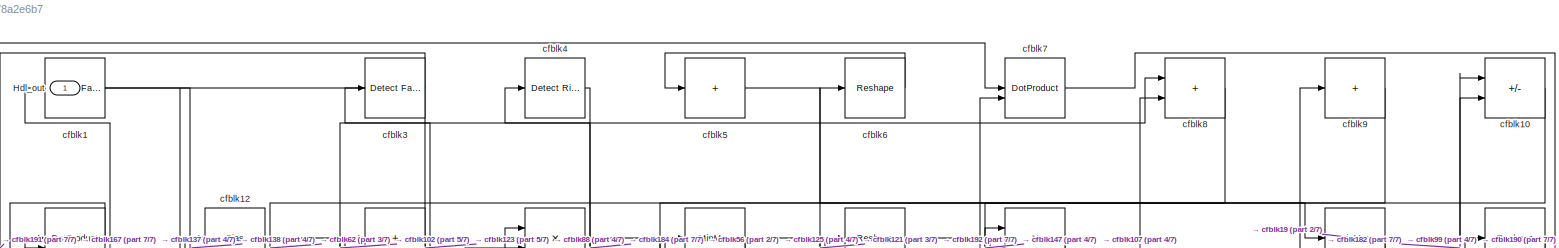
[diagram: root canvas - part 1/7, full width, top band]
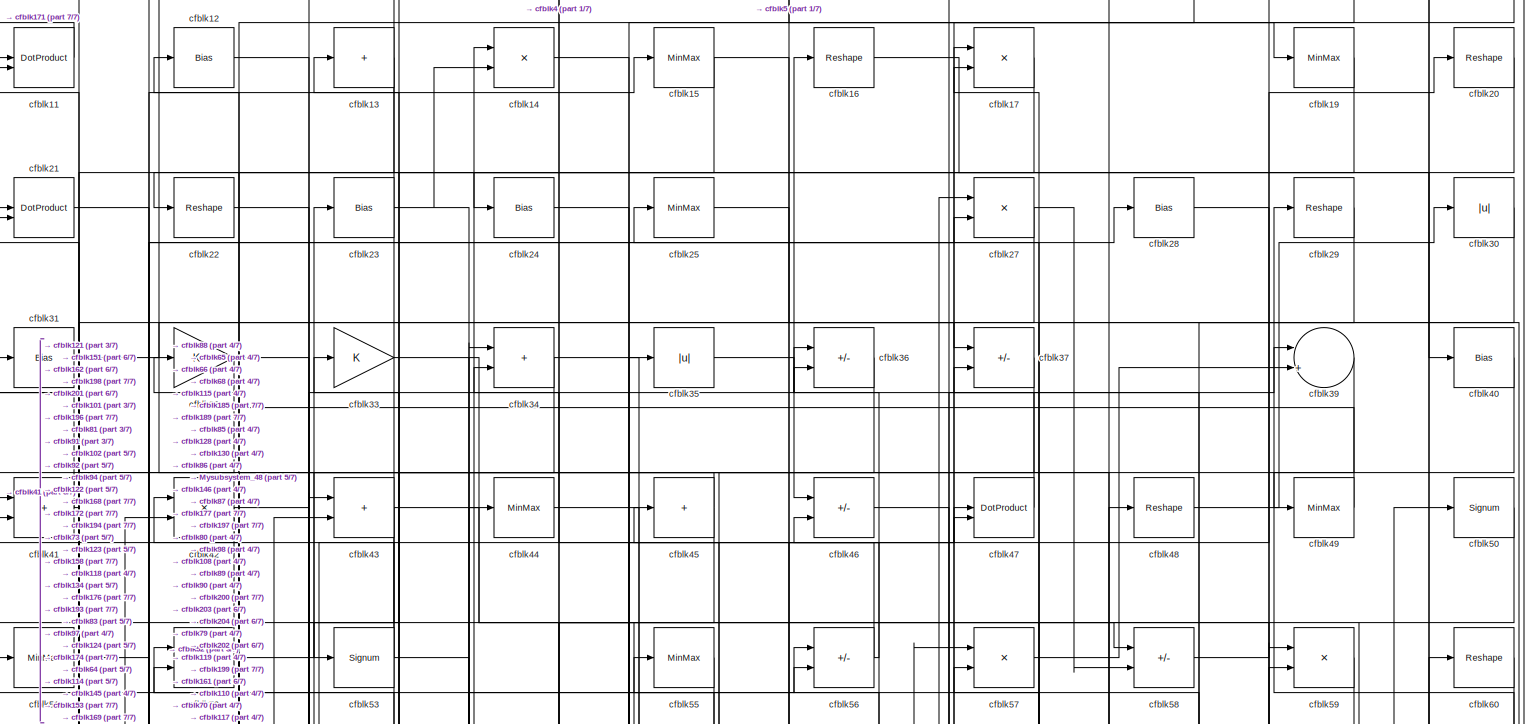
[diagram: root canvas - part 2/7, full width, top band]
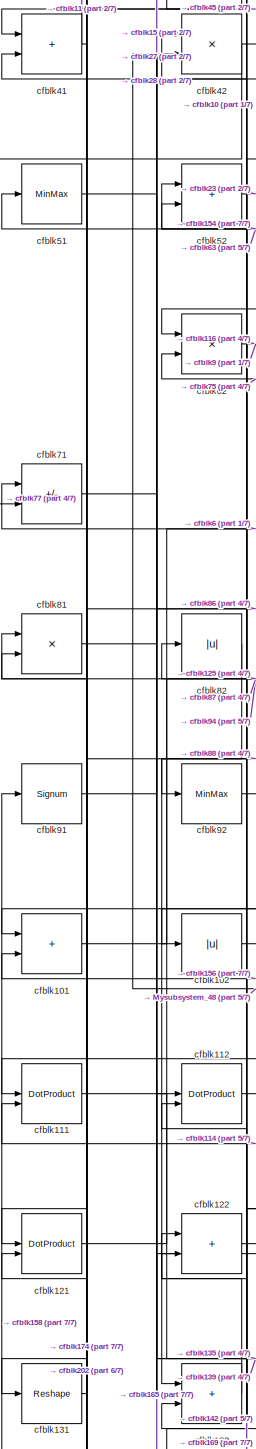
[diagram: root canvas - part 3/7, middle left region]
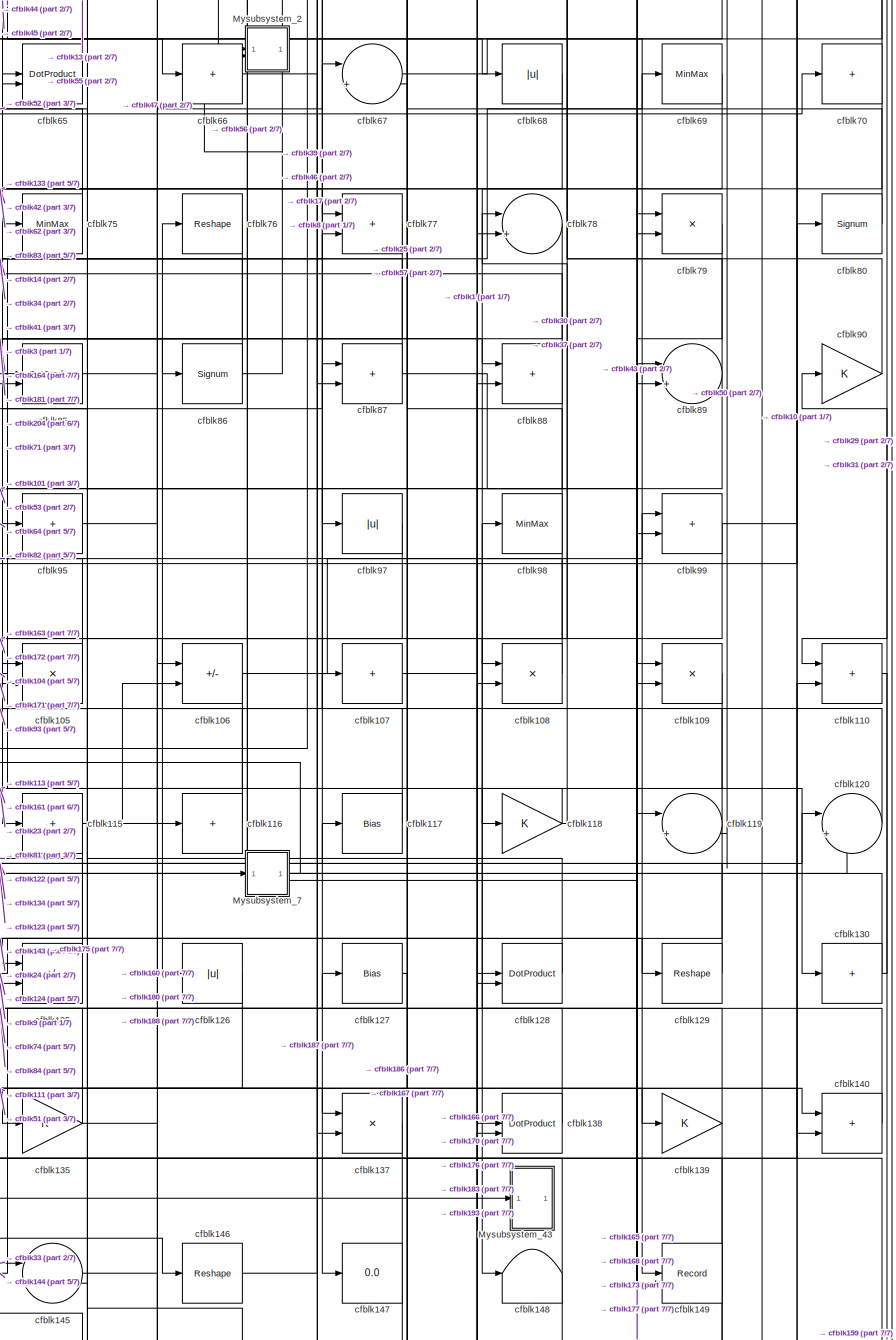
[diagram: root canvas - part 4/7, middle right region]
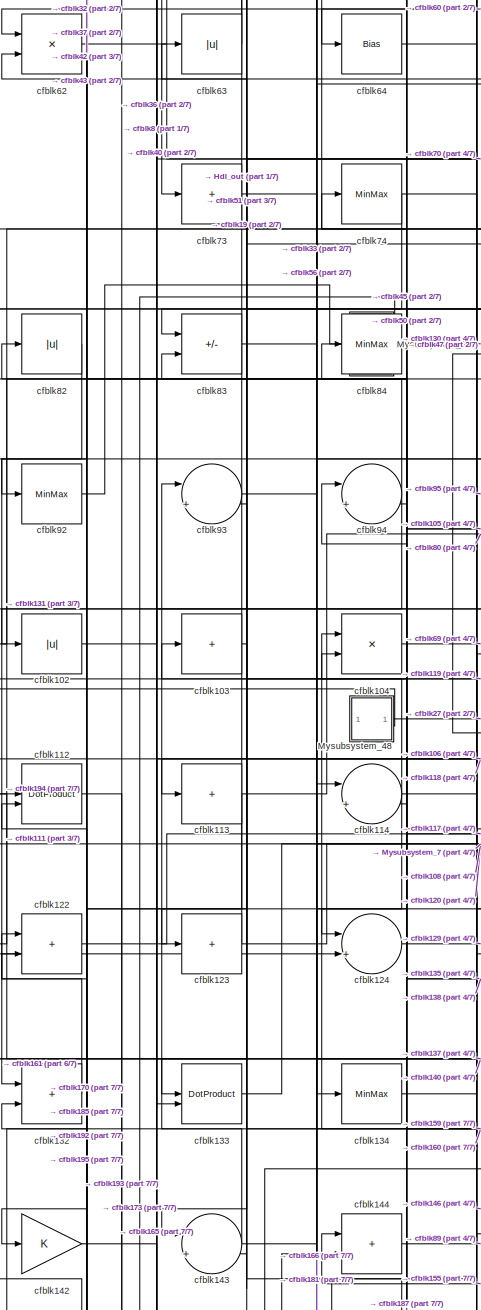
[diagram: root canvas - part 5/7, middle left region]
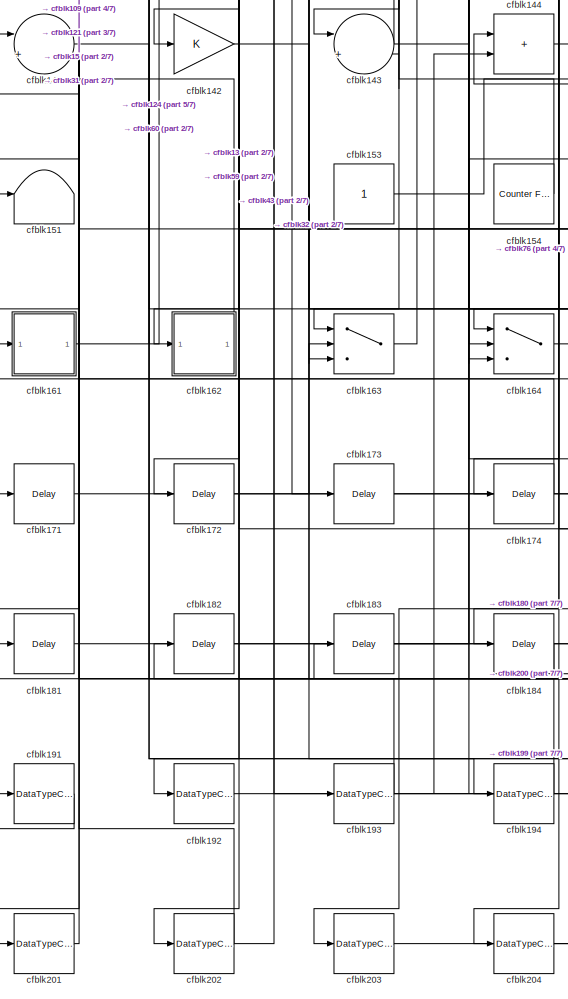
[diagram: root canvas - part 6/7, bottom left region]
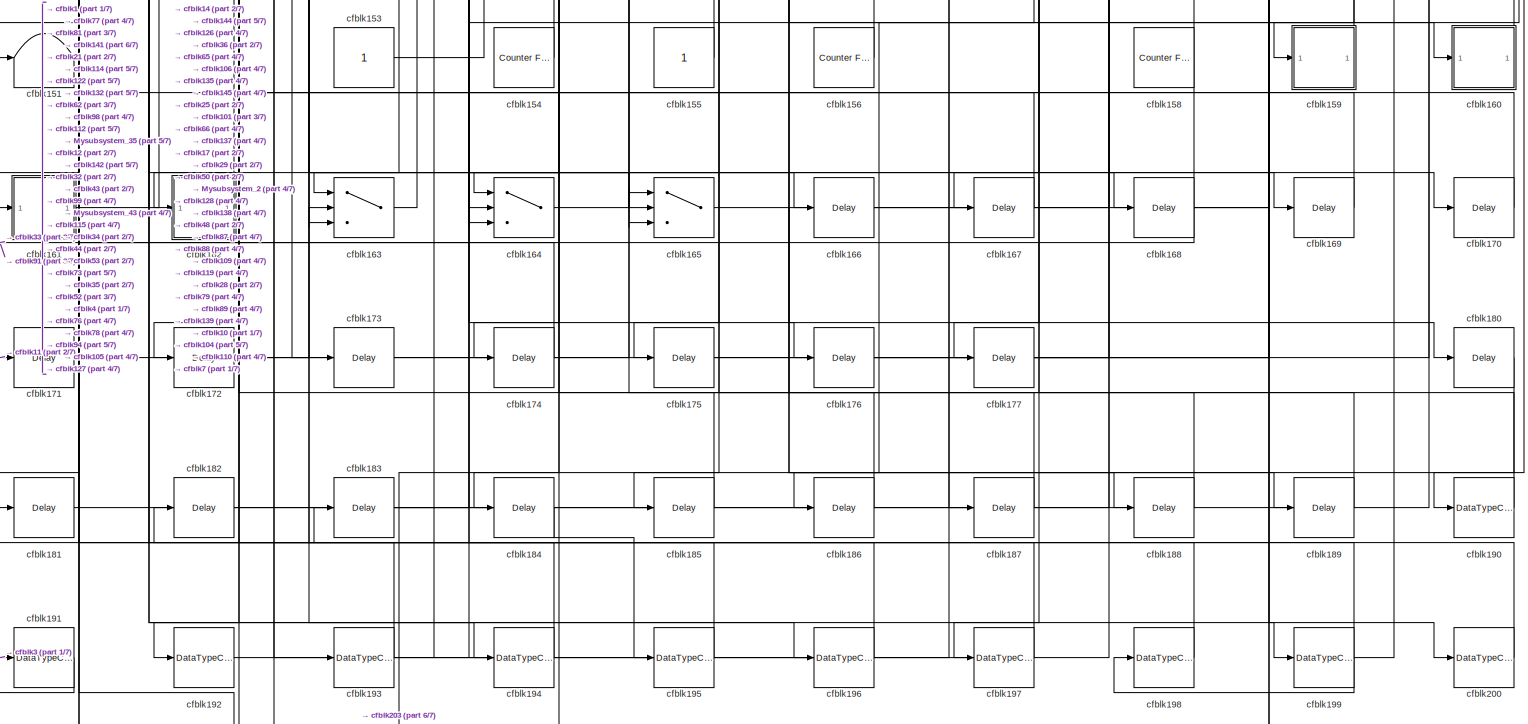
[diagram: root canvas - part 7/7, full width, bottom band]
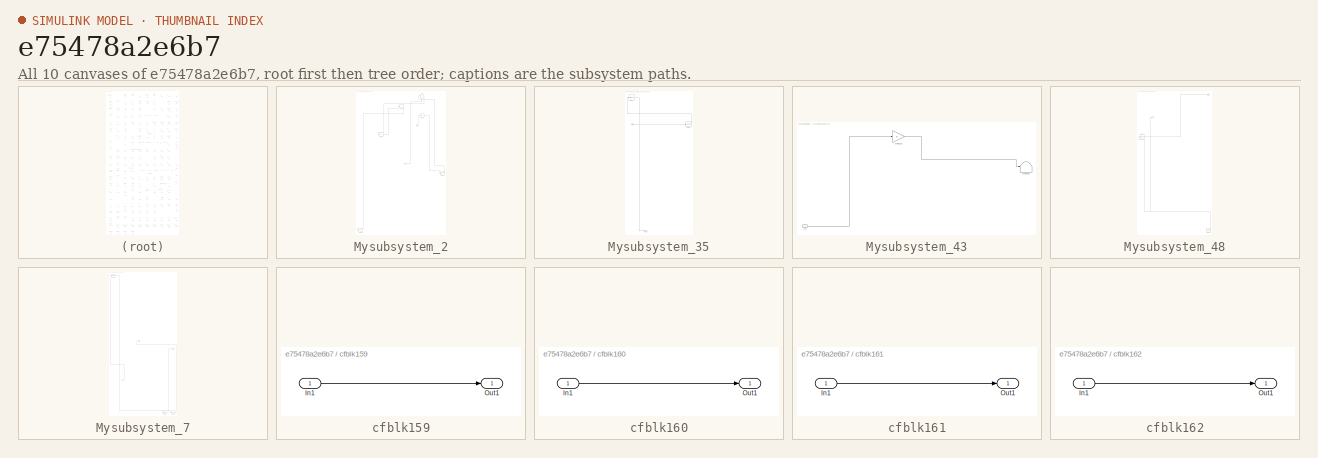
[diagram: thumbnail index - all 10 canvases of the model, root first then tree order]
MODEL slx_e75478a2e6b7
KIND model
CONFIG AbsTol = auto
CONFIG EnableMultiTasking = off
CONFIG FixedStep = auto
CONFIG MaxStep = auto
CONFIG MinStep = auto
CONFIG RelTol = 1e-3
CONFIG SampleTimeConstraint = Unconstrained
CONFIG SolverName = VariableStepAuto
CONFIG StartTime = 0.0
CONFIG StopTime = 10.0
BLOCK [Outport] Hdl_out
  OutDataTypeStr = uint8
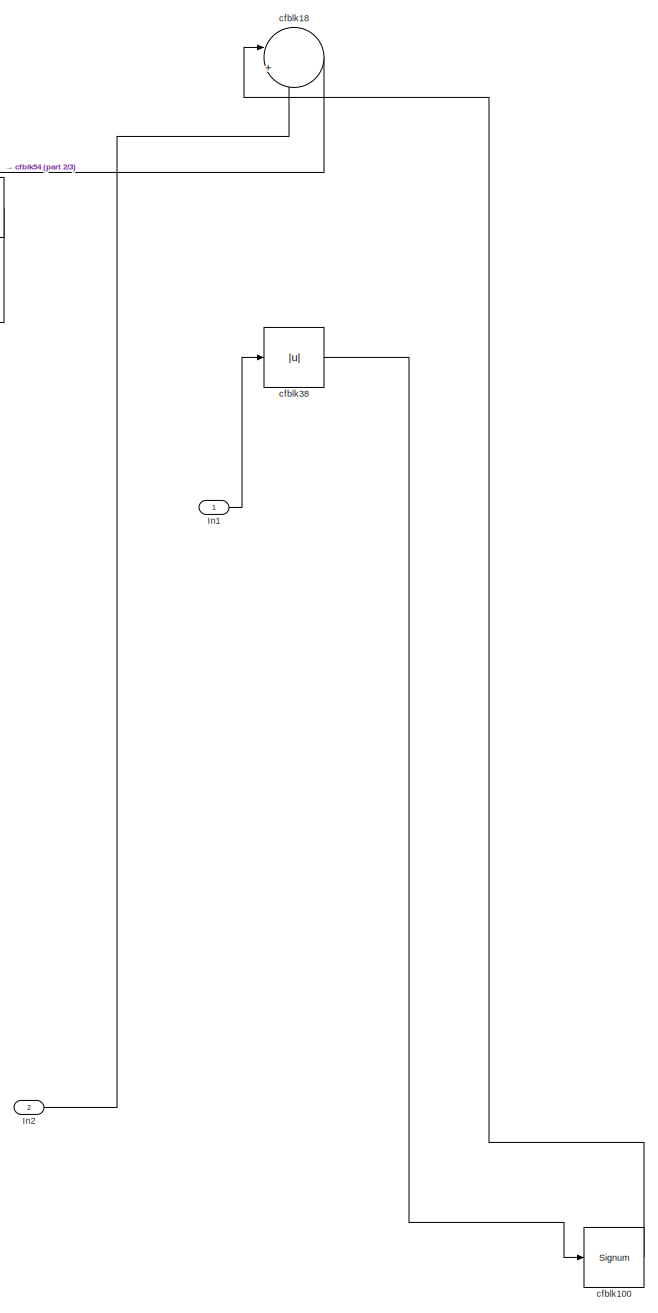
[diagram: Mysubsystem_2 - part 1/3, top right region]
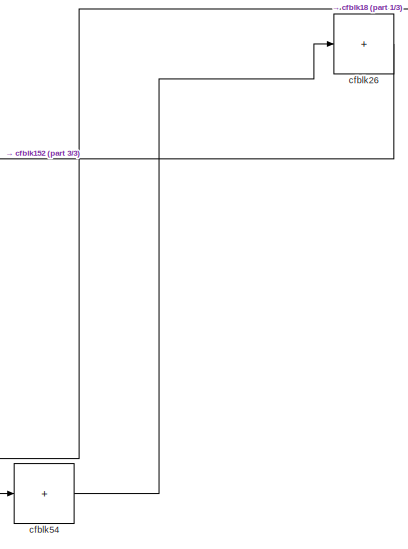
[diagram: Mysubsystem_2 - part 2/3, top center region]
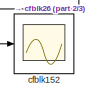
[diagram: Mysubsystem_2 - part 3/3, bottom left region]
BLOCK [SubSystem] Mysubsystem_2
  RTWFcnName = Mysubsystem_2
  RTWFcnNameOpts = User specified
  RTWFileNameOpts = Use function name
  RTWSystemCode = Reusable function
  TreatAsAtomicUnit = on
BLOCK [Inport] Mysubsystem_2/In1
BLOCK [Inport] Mysubsystem_2/In2
  Port = 2
BLOCK [Signum] Mysubsystem_2/cfblk100
BLOCK [Scope] Mysubsystem_2/cfblk152
  Floating = off
  NumInputPorts = 1
  ScopeSpecificationString = Simulink.scopes.TimeScopeBlockCfg('CurrentConfiguration', extmgr.ConfigurationSet(extmgr.Configuration('Core','General UI',true),extmgr.Configuration('Core','Source UI',true),extmgr.Configuration('Sources','WiredSimulink',true,'DataLoggingVariableName','ScopeData2','DataLoggingSaveFormat','Array','DataLoggingLimitDataPoints',true,'DataLoggingDecimation','1'),extmgr.Configuration('Visuals','Time Do...<+868ch>
BLOCK [Sum] Mysubsystem_2/cfblk18
  Inputs = |++
BLOCK [Sum] Mysubsystem_2/cfblk26
  IconShape = rectangular
  Inputs = +
BLOCK [Abs] Mysubsystem_2/cfblk38
  SaturateOnIntegerOverflow = off
BLOCK [Sum] Mysubsystem_2/cfblk54
  IconShape = rectangular
  Inputs = +
BLOCK [SubSystem] Mysubsystem_35
  RTWFcnName = Mysubsystem_35
  RTWFcnNameOpts = User specified
  RTWFileNameOpts = Use function name
  RTWSystemCode = Reusable function
  TreatAsAtomicUnit = on
BLOCK [Inport] Mysubsystem_35/In1
BLOCK [Outport] Mysubsystem_35/Out1
BLOCK [Signum] Mysubsystem_35/cfblk72
BLOCK [Signum] Mysubsystem_35/cfblk96
BLOCK [SubSystem] Mysubsystem_43
  RTWFcnName = Mysubsystem_43
  RTWFcnNameOpts = User specified
  RTWFileNameOpts = Use function name
  RTWSystemCode = Reusable function
  TreatAsAtomicUnit = on
BLOCK [Inport] Mysubsystem_43/In1
BLOCK [Gain] Mysubsystem_43/cfblk136
BLOCK [Terminator] Mysubsystem_43/cfblk150
BLOCK [SubSystem] Mysubsystem_48
  RTWFcnName = Mysubsystem_48
  RTWFcnNameOpts = User specified
  RTWFileNameOpts = Use function name
  RTWSystemCode = Reusable function
  TreatAsAtomicUnit = on
BLOCK [Outport] Mysubsystem_48/Out1
BLOCK [Reference] Mysubsystem_48/cfblk157  REF=hdlsllib/Sources/Counter
Free-Running
  SourceBlock = hdlsllib/Sources/Counter\nFree-Running
  SourceType = Counter Free-Running
BLOCK [Reshape] Mysubsystem_48/cfblk61
BLOCK [Outport] Mysubsystem_48/y
  Port = 2
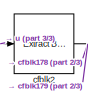
[diagram: Mysubsystem_7 - part 1/3, top left region]
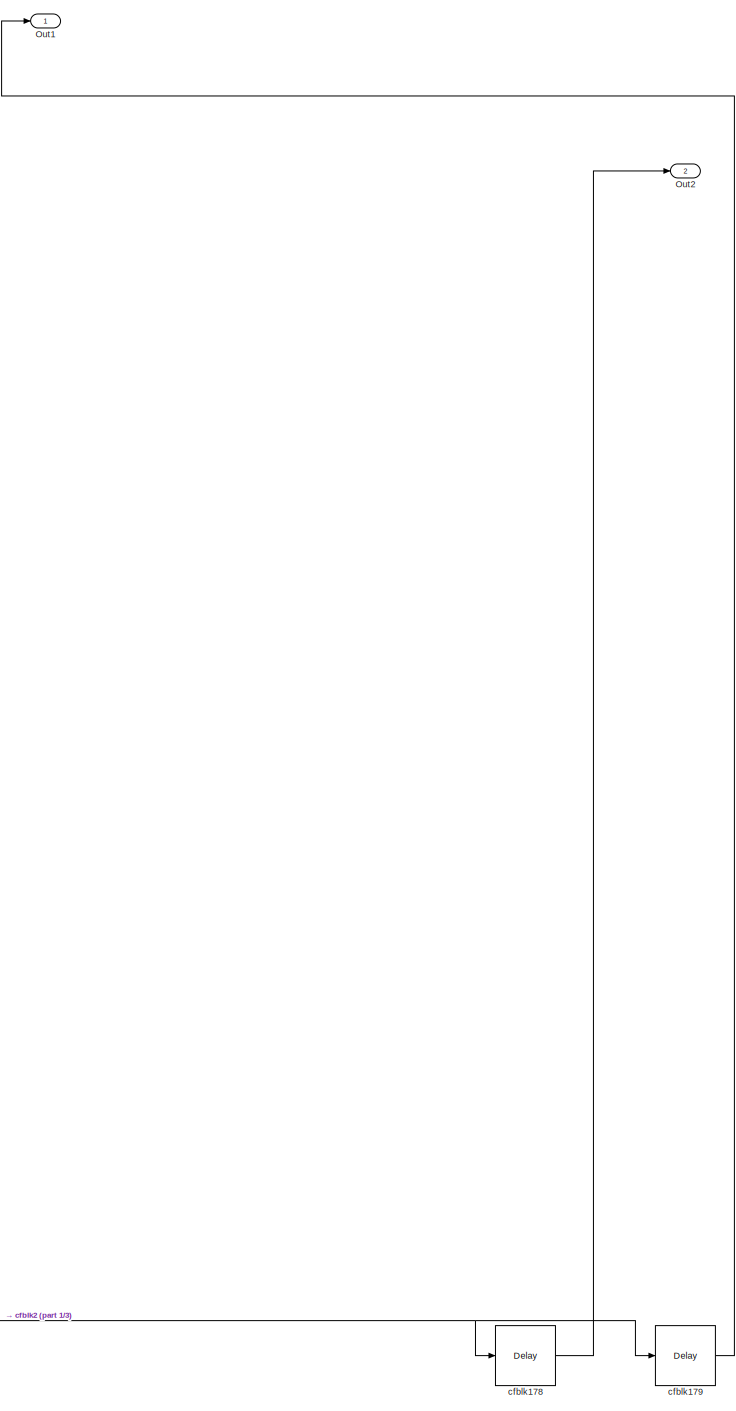
[diagram: Mysubsystem_7 - part 2/3, bottom right region]
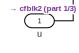
[diagram: Mysubsystem_7 - part 3/3, bottom left region]
BLOCK [SubSystem] Mysubsystem_7
  RTWFcnName = Mysubsystem_7
  RTWFcnNameOpts = User specified
  RTWFileNameOpts = Use function name
  RTWSystemCode = Reusable function
  TreatAsAtomicUnit = on
BLOCK [Outport] Mysubsystem_7/Out1
BLOCK [Outport] Mysubsystem_7/Out2
  Port = 2
BLOCK [Delay] Mysubsystem_7/cfblk178
  InputPortMap = u0
  SampleTime = 1
BLOCK [Delay] Mysubsystem_7/cfblk179
  InputPortMap = u0
  SampleTime = 1
BLOCK [Reference] Mysubsystem_7/cfblk2  REF=simulink/Logic and Bit
Operations/Extract Bits
  LibrarySourceBlock = hdlsllib/Logic and Bit\nOperations/Extract Bits
  SourceBlock = simulink/Logic and Bit\nOperations/Extract Bits
  SourceType = Extract Bits
BLOCK [Inport] Mysubsystem_7/u
BLOCK [Reference] cfblk1  REF=hdlsllib/Logic and Bit
Operations/Detect Fall
Nonpositive
  SourceBlock = hdlsllib/Logic and Bit\nOperations/Detect Fall\nNonpositive
  SourceType = Detect Fall Nonpositive
BLOCK [Sum] cfblk10
  IconShape = rectangular
  Inputs = +-
  OutDataTypeStr = uint8
BLOCK [Sum] cfblk101
  IconShape = rectangular
  OutDataTypeStr = uint8
BLOCK [Abs] cfblk102
  OutDataTypeStr = uint8
  SaturateOnIntegerOverflow = off
BLOCK [Sum] cfblk103
  IconShape = rectangular
  Inputs = +
  OutDataTypeStr = uint8
BLOCK [Product] cfblk104
  Inputs = */
  OutDataTypeStr = uint8
  RndMeth = Zero
  SaturateOnIntegerOverflow = on
BLOCK [Product] cfblk105
  Inputs = */
  OutDataTypeStr = uint8
  RndMeth = Zero
  SaturateOnIntegerOverflow = on
BLOCK [Sum] cfblk106
  IconShape = rectangular
  Inputs = +-
  OutDataTypeStr = uint8
BLOCK [Sum] cfblk107
  IconShape = rectangular
  Inputs = +
  OutDataTypeStr = uint8
BLOCK [Product] cfblk108
  Inputs = */
  OutDataTypeStr = uint8
  RndMeth = Zero
  SaturateOnIntegerOverflow = on
BLOCK [Product] cfblk109
  Inputs = */
  OutDataTypeStr = uint8
  RndMeth = Zero
  SaturateOnIntegerOverflow = on
BLOCK [DotProduct] cfblk11
  OutDataTypeStr = uint8
BLOCK [Sum] cfblk110
  IconShape = rectangular
  OutDataTypeStr = uint8
BLOCK [DotProduct] cfblk111
  OutDataTypeStr = uint8
BLOCK [DotProduct] cfblk112
  OutDataTypeStr = uint8
BLOCK [Sum] cfblk113
  IconShape = rectangular
  Inputs = +
  OutDataTypeStr = uint8
BLOCK [Sum] cfblk114
  Inputs = |++
  OutDataTypeStr = uint8
BLOCK [Sum] cfblk115
  IconShape = rectangular
  Inputs = +
  OutDataTypeStr = uint8
BLOCK [Sum] cfblk116
  IconShape = rectangular
  Inputs = +
  OutDataTypeStr = uint8
BLOCK [Bias] cfblk117
  Bias = 0.0
  SaturateOnIntegerOverflow = off
BLOCK [Gain] cfblk118
  OutDataTypeStr = uint8
BLOCK [Sum] cfblk119
  Inputs = |++
  OutDataTypeStr = uint8
BLOCK [Bias] cfblk12
  Bias = 0.0
  SaturateOnIntegerOverflow = off
BLOCK [Sum] cfblk120
  Inputs = |++
  OutDataTypeStr = uint8
BLOCK [DotProduct] cfblk121
  OutDataTypeStr = uint8
BLOCK [Sum] cfblk122
  IconShape = rectangular
  OutDataTypeStr = uint8
BLOCK [Sum] cfblk123
  IconShape = rectangular
  Inputs = +
  OutDataTypeStr = uint8
BLOCK [Sum] cfblk124
  Inputs = |++
  OutDataTypeStr = uint8
BLOCK [Sum] cfblk125
  IconShape = rectangular
  Inputs = +-
  OutDataTypeStr = uint8
BLOCK [Abs] cfblk126
  OutDataTypeStr = uint8
  SaturateOnIntegerOverflow = off
BLOCK [Bias] cfblk127
  Bias = 0.0
  SaturateOnIntegerOverflow = off
BLOCK [DotProduct] cfblk128
  OutDataTypeStr = uint8
BLOCK [Reshape] cfblk129
BLOCK [Sum] cfblk13
  IconShape = rectangular
  Inputs = +
  OutDataTypeStr = uint8
BLOCK [Sum] cfblk130
  IconShape = rectangular
  Inputs = +
  OutDataTypeStr = uint8
BLOCK [Reshape] cfblk131
BLOCK [Sum] cfblk132
  IconShape = rectangular
  OutDataTypeStr = uint8
BLOCK [DotProduct] cfblk133
  OutDataTypeStr = uint8
BLOCK [MinMax] cfblk134
  OutDataTypeStr = uint8
BLOCK [Gain] cfblk135
  OutDataTypeStr = uint8
BLOCK [Product] cfblk137
  Inputs = */
  OutDataTypeStr = uint8
  RndMeth = Zero
  SaturateOnIntegerOverflow = on
BLOCK [DotProduct] cfblk138
  OutDataTypeStr = uint8
BLOCK [Gain] cfblk139
  OutDataTypeStr = uint8
BLOCK [Product] cfblk14
  Inputs = */
  OutDataTypeStr = uint8
  RndMeth = Zero
  SaturateOnIntegerOverflow = on
BLOCK [Sum] cfblk140
  IconShape = rectangular
  OutDataTypeStr = uint8
BLOCK [Sum] cfblk141
  Inputs = |++
  OutDataTypeStr = uint8
BLOCK [Gain] cfblk142
  OutDataTypeStr = uint8
BLOCK [Sum] cfblk143
  Inputs = |++
  OutDataTypeStr = uint8
BLOCK [Sum] cfblk144
  IconShape = rectangular
  OutDataTypeStr = uint8
BLOCK [Sum] cfblk145
  Inputs = |++
  OutDataTypeStr = uint8
BLOCK [Reshape] cfblk146
BLOCK [Display] cfblk147
  Decimation = 1
BLOCK [Terminator] cfblk148
BLOCK [Record] cfblk149
  CompatibilityTag = XY
  FileSettingsInternal = {"entries":[{"content":{"excelSettings":{"content":{},"type":"Streamout.ExcelSettings"}},"type":"Streamout.FileSettingStorage","uuid":""}],"packageUris":["http:\/\/schema.mathworks.com\/mf0\/streamout_blocks\/R2020a"],"version":"1.0"}
  Layout = [1 1]
  SignalsInternal = {"entries":[{"content":{"signals":[{"content":{"blockPath":[],"dimensions":[1],"domain":"","lineColor":"#a2142f","plots":[1],"port":1,"signalID":45805,"signalName":"cfblk67"},"type":"RecordBlkView.Signal","uuid":""},{"content":{"blockPath":[],"dimensions":[1],"domain":"","lineColor":"#139fff","plots":[1],"port":2,"signalID":45808,"signalName":"cfblk87"},"type":"RecordBlkView.Signal","uuid":""}]},"...<+142ch>
  VisualizationBindings = {"xyplotplugin":{"info":[{"series":[{"bindingParametersList":[{"parameter":"X-Axis","signalID":45805,"signalName":"cfblk67"},{"parameter":"Y-Axis","signalID":45808,"signalName":"cfblk87"}],"seriesID":27650}],"subplotID":1}]}}
  st = -1
BLOCK [MinMax] cfblk15
  OutDataTypeStr = uint8
BLOCK [Terminator] cfblk151
BLOCK [Constant] cfblk153
  OutDataTypeStr = uint8
  SampleTime = -1
BLOCK [Reference] cfblk154  REF=hdlsllib/Sources/Counter
Free-Running
  SourceBlock = hdlsllib/Sources/Counter\nFree-Running
  SourceType = Counter Free-Running
BLOCK [Constant] cfblk155
  OutDataTypeStr = uint8
  SampleTime = -1
BLOCK [Reference] cfblk156  REF=hdlsllib/Sources/Counter
Free-Running
  SourceBlock = hdlsllib/Sources/Counter\nFree-Running
  SourceType = Counter Free-Running
BLOCK [Reference] cfblk158  REF=hdlsllib/Sources/Counter
Free-Running
  SourceBlock = hdlsllib/Sources/Counter\nFree-Running
  SourceType = Counter Free-Running
BLOCK [SubSystem] cfblk159
  LibrarySourceBlock = hdlsllib/Ports &\nSubsystems/Subsystem
BLOCK [Inport] cfblk159/In1
BLOCK [Outport] cfblk159/Out1
BLOCK [Reshape] cfblk16
BLOCK [SubSystem] cfblk160
  LibrarySourceBlock = hdlsllib/Ports &\nSubsystems/Subsystem
BLOCK [Inport] cfblk160/In1
BLOCK [Outport] cfblk160/Out1
BLOCK [SubSystem] cfblk161
  LibrarySourceBlock = hdlsllib/Ports &\nSubsystems/Subsystem
BLOCK [Inport] cfblk161/In1
BLOCK [Outport] cfblk161/Out1
BLOCK [SubSystem] cfblk162
  LibrarySourceBlock = hdlsllib/Ports &\nSubsystems/Subsystem
BLOCK [Inport] cfblk162/In1
BLOCK [Outport] cfblk162/Out1
BLOCK [Switch] cfblk163
  InputSameDT = off
  OutDataTypeStr = uint8
  SaturateOnIntegerOverflow = off
BLOCK [Switch] cfblk164
  InputSameDT = off
  OutDataTypeStr = uint8
  SaturateOnIntegerOverflow = off
BLOCK [Switch] cfblk165
  InputSameDT = off
  OutDataTypeStr = uint8
  SaturateOnIntegerOverflow = off
BLOCK [Delay] cfblk166
  InputPortMap = u0
  SampleTime = 1
BLOCK [Delay] cfblk167
  InputPortMap = u0
  SampleTime = 1
BLOCK [Delay] cfblk168
  InputPortMap = u0
  SampleTime = 1
BLOCK [Delay] cfblk169
  InputPortMap = u0
  SampleTime = 1
BLOCK [Product] cfblk17
  Inputs = */
  OutDataTypeStr = uint8
  RndMeth = Zero
  SaturateOnIntegerOverflow = on
BLOCK [Delay] cfblk170
  InputPortMap = u0
  SampleTime = 1
BLOCK [Delay] cfblk171
  InputPortMap = u0
  SampleTime = 1
BLOCK [Delay] cfblk172
  InputPortMap = u0
  SampleTime = 1
BLOCK [Delay] cfblk173
  InputPortMap = u0
  SampleTime = 1
BLOCK [Delay] cfblk174
  InputPortMap = u0
  SampleTime = 1
BLOCK [Delay] cfblk175
  InputPortMap = u0
  SampleTime = 1
BLOCK [Delay] cfblk176
  InputPortMap = u0
  SampleTime = 1
BLOCK [Delay] cfblk177
  InputPortMap = u0
  SampleTime = 1
BLOCK [Delay] cfblk180
  InputPortMap = u0
  SampleTime = 1
BLOCK [Delay] cfblk181
  InputPortMap = u0
  SampleTime = 1
BLOCK [Delay] cfblk182
  InputPortMap = u0
  SampleTime = 1
BLOCK [Delay] cfblk183
  InputPortMap = u0
  SampleTime = 1
BLOCK [Delay] cfblk184
  InputPortMap = u0
  SampleTime = 1
BLOCK [Delay] cfblk185
  InputPortMap = u0
  SampleTime = 1
BLOCK [Delay] cfblk186
  InputPortMap = u0
  SampleTime = 1
BLOCK [Delay] cfblk187
  InputPortMap = u0
  SampleTime = 1
BLOCK [Delay] cfblk188
  InputPortMap = u0
  SampleTime = 1
BLOCK [Delay] cfblk189
  InputPortMap = u0
  SampleTime = 1
BLOCK [MinMax] cfblk19
  OutDataTypeStr = uint8
BLOCK [DataTypeConversion] cfblk190
  OutDataTypeStr = uint8
  RndMeth = Floor
  SaturateOnIntegerOverflow = off
BLOCK [DataTypeConversion] cfblk191
  OutDataTypeStr = uint8
  RndMeth = Floor
  SaturateOnIntegerOverflow = off
BLOCK [DataTypeConversion] cfblk192
  OutDataTypeStr = uint8
  RndMeth = Floor
  SaturateOnIntegerOverflow = off
BLOCK [DataTypeConversion] cfblk193
  OutDataTypeStr = uint8
  RndMeth = Floor
  SaturateOnIntegerOverflow = off
BLOCK [DataTypeConversion] cfblk194
  OutDataTypeStr = uint8
  RndMeth = Floor
  SaturateOnIntegerOverflow = off
BLOCK [DataTypeConversion] cfblk195
  OutDataTypeStr = uint8
  RndMeth = Floor
  SaturateOnIntegerOverflow = off
BLOCK [DataTypeConversion] cfblk196
  OutDataTypeStr = uint8
  RndMeth = Floor
  SaturateOnIntegerOverflow = off
BLOCK [DataTypeConversion] cfblk197
  OutDataTypeStr = uint8
  RndMeth = Floor
  SaturateOnIntegerOverflow = off
BLOCK [DataTypeConversion] cfblk198
  OutDataTypeStr = uint8
  RndMeth = Floor
  SaturateOnIntegerOverflow = off
BLOCK [DataTypeConversion] cfblk199
  OutDataTypeStr = uint8
  RndMeth = Floor
  SaturateOnIntegerOverflow = off
BLOCK [Reshape] cfblk20
BLOCK [DataTypeConversion] cfblk200
  OutDataTypeStr = uint8
  RndMeth = Floor
  SaturateOnIntegerOverflow = off
BLOCK [DataTypeConversion] cfblk201
  OutDataTypeStr = uint8
  RndMeth = Floor
  SaturateOnIntegerOverflow = off
BLOCK [DataTypeConversion] cfblk202
  OutDataTypeStr = uint8
  RndMeth = Floor
  SaturateOnIntegerOverflow = off
BLOCK [DataTypeConversion] cfblk203
  OutDataTypeStr = uint8
  RndMeth = Floor
  SaturateOnIntegerOverflow = off
BLOCK [DataTypeConversion] cfblk204
  OutDataTypeStr = uint8
  RndMeth = Floor
  SaturateOnIntegerOverflow = off
BLOCK [DotProduct] cfblk21
  OutDataTypeStr = uint8
BLOCK [Reshape] cfblk22
BLOCK [Bias] cfblk23
  Bias = 0.0
  SaturateOnIntegerOverflow = off
BLOCK [Bias] cfblk24
  Bias = 0.0
  SaturateOnIntegerOverflow = off
BLOCK [MinMax] cfblk25
  OutDataTypeStr = uint8
BLOCK [Product] cfblk27
  Inputs = */
  OutDataTypeStr = uint8
  RndMeth = Zero
  SaturateOnIntegerOverflow = on
BLOCK [Bias] cfblk28
  Bias = 0.0
  SaturateOnIntegerOverflow = off
BLOCK [Reshape] cfblk29
BLOCK [Reference] cfblk3  REF=hdlsllib/Logic and Bit
Operations/Detect Fall
Negative
  SourceBlock = hdlsllib/Logic and Bit\nOperations/Detect Fall\nNegative
  SourceType = Detect Fall Negative
BLOCK [Abs] cfblk30
  OutDataTypeStr = uint8
  SaturateOnIntegerOverflow = off
BLOCK [Bias] cfblk31
  Bias = 0.0
  SaturateOnIntegerOverflow = off
BLOCK [Gain] cfblk32
  OutDataTypeStr = uint8
BLOCK [Gain] cfblk33
  OutDataTypeStr = uint8
BLOCK [Sum] cfblk34
  IconShape = rectangular
  OutDataTypeStr = uint8
BLOCK [Abs] cfblk35
  OutDataTypeStr = uint8
  SaturateOnIntegerOverflow = off
BLOCK [Sum] cfblk36
  IconShape = rectangular
  Inputs = +-
  OutDataTypeStr = uint8
BLOCK [Sum] cfblk37
  IconShape = rectangular
  Inputs = +-
  OutDataTypeStr = uint8
BLOCK [Sum] cfblk39
  Inputs = |++
  OutDataTypeStr = uint8
BLOCK [Reference] cfblk4  REF=hdlsllib/Logic and Bit
Operations/Detect Rise
Nonnegative
  SourceBlock = hdlsllib/Logic and Bit\nOperations/Detect Rise\nNonnegative
  SourceType = Detect Rise Nonnegative
BLOCK [Bias] cfblk40
  Bias = 0.0
  SaturateOnIntegerOverflow = off
BLOCK [Sum] cfblk41
  IconShape = rectangular
  OutDataTypeStr = uint8
BLOCK [Product] cfblk42
  Inputs = */
  OutDataTypeStr = uint8
  RndMeth = Zero
  SaturateOnIntegerOverflow = on
BLOCK [Sum] cfblk43
  IconShape = rectangular
  OutDataTypeStr = uint8
BLOCK [MinMax] cfblk44
  OutDataTypeStr = uint8
BLOCK [Sum] cfblk45
  IconShape = rectangular
  Inputs = +
  OutDataTypeStr = uint8
BLOCK [Sum] cfblk46
  IconShape = rectangular
  Inputs = +-
  OutDataTypeStr = uint8
BLOCK [DotProduct] cfblk47
  OutDataTypeStr = uint8
BLOCK [Reshape] cfblk48
BLOCK [MinMax] cfblk49
  OutDataTypeStr = uint8
BLOCK [Sum] cfblk5
  IconShape = rectangular
  Inputs = +
  OutDataTypeStr = uint8
BLOCK [Signum] cfblk50
BLOCK [MinMax] cfblk51
  OutDataTypeStr = uint8
BLOCK [Sum] cfblk52
  IconShape = rectangular
  OutDataTypeStr = uint8
BLOCK [Signum] cfblk53
BLOCK [MinMax] cfblk55
  OutDataTypeStr = uint8
BLOCK [Sum] cfblk56
  IconShape = rectangular
  Inputs = +-
  OutDataTypeStr = uint8
BLOCK [Product] cfblk57
  Inputs = */
  OutDataTypeStr = uint8
  RndMeth = Zero
  SaturateOnIntegerOverflow = on
BLOCK [Sum] cfblk58
  IconShape = rectangular
  Inputs = +-
  OutDataTypeStr = uint8
BLOCK [Product] cfblk59
  Inputs = */
  OutDataTypeStr = uint8
  RndMeth = Zero
  SaturateOnIntegerOverflow = on
BLOCK [Reshape] cfblk6
BLOCK [Reshape] cfblk60
BLOCK [Product] cfblk62
  Inputs = */
  OutDataTypeStr = uint8
  RndMeth = Zero
  SaturateOnIntegerOverflow = on
BLOCK [Abs] cfblk63
  OutDataTypeStr = uint8
  SaturateOnIntegerOverflow = off
BLOCK [Bias] cfblk64
  Bias = 0.0
  SaturateOnIntegerOverflow = off
BLOCK [DotProduct] cfblk65
  OutDataTypeStr = uint8
BLOCK [Sum] cfblk66
  IconShape = rectangular
  Inputs = +
  OutDataTypeStr = uint8
BLOCK [Sum] cfblk67
  Inputs = |++
  OutDataTypeStr = uint8
BLOCK [Abs] cfblk68
  OutDataTypeStr = uint8
  SaturateOnIntegerOverflow = off
BLOCK [MinMax] cfblk69
  OutDataTypeStr = uint8
BLOCK [DotProduct] cfblk7
  OutDataTypeStr = uint8
BLOCK [Sum] cfblk70
  IconShape = rectangular
  Inputs = +
  OutDataTypeStr = uint8
BLOCK [Sum] cfblk71
  IconShape = rectangular
  Inputs = +-
  OutDataTypeStr = uint8
BLOCK [Sum] cfblk73
  IconShape = rectangular
  Inputs = +
  OutDataTypeStr = uint8
BLOCK [MinMax] cfblk74
  OutDataTypeStr = uint8
BLOCK [MinMax] cfblk75
  OutDataTypeStr = uint8
BLOCK [Reshape] cfblk76
BLOCK [Sum] cfblk77
  IconShape = rectangular
  OutDataTypeStr = uint8
BLOCK [Sum] cfblk78
  Inputs = |++
  OutDataTypeStr = uint8
BLOCK [Product] cfblk79
  Inputs = */
  OutDataTypeStr = uint8
  RndMeth = Zero
  SaturateOnIntegerOverflow = on
BLOCK [Sum] cfblk8
  IconShape = rectangular
  OutDataTypeStr = uint8
BLOCK [Signum] cfblk80
BLOCK [Product] cfblk81
  Inputs = */
  OutDataTypeStr = uint8
  RndMeth = Zero
  SaturateOnIntegerOverflow = on
BLOCK [Abs] cfblk82
  OutDataTypeStr = uint8
  SaturateOnIntegerOverflow = off
BLOCK [Sum] cfblk83
  IconShape = rectangular
  Inputs = +-
  OutDataTypeStr = uint8
BLOCK [MinMax] cfblk84
  OutDataTypeStr = uint8
BLOCK [DotProduct] cfblk85
  OutDataTypeStr = uint8
BLOCK [Signum] cfblk86
BLOCK [Sum] cfblk87
  IconShape = rectangular
  OutDataTypeStr = uint8
BLOCK [Sum] cfblk88
  IconShape = rectangular
  OutDataTypeStr = uint8
BLOCK [Sum] cfblk89
  Inputs = |++
  OutDataTypeStr = uint8
BLOCK [Sum] cfblk9
  IconShape = rectangular
  Inputs = +
  OutDataTypeStr = uint8
BLOCK [Gain] cfblk90
  OutDataTypeStr = uint8
BLOCK [Signum] cfblk91
BLOCK [MinMax] cfblk92
  OutDataTypeStr = uint8
BLOCK [Sum] cfblk93
  Inputs = |++
  OutDataTypeStr = uint8
BLOCK [Sum] cfblk94
  Inputs = |++
  OutDataTypeStr = uint8
BLOCK [Sum] cfblk95
  IconShape = rectangular
  Inputs = +
  OutDataTypeStr = uint8
BLOCK [Abs] cfblk97
  OutDataTypeStr = uint8
  SaturateOnIntegerOverflow = off
BLOCK [MinMax] cfblk98
  OutDataTypeStr = uint8
BLOCK [Sum] cfblk99
  IconShape = rectangular
  OutDataTypeStr = uint8
LINE Mysubsystem_2/In1:1 -> Mysubsystem_2/cfblk38:1
LINE Mysubsystem_2/In2:1 -> Mysubsystem_2/cfblk18:2
LINE Mysubsystem_2/cfblk100:1 -> Mysubsystem_2/cfblk18:1
LINE Mysubsystem_2/cfblk18:1 -> Mysubsystem_2/cfblk54:1
LINE Mysubsystem_2/cfblk26:1 -> Mysubsystem_2/cfblk152:1
LINE Mysubsystem_2/cfblk38:1 -> Mysubsystem_2/cfblk100:1
LINE Mysubsystem_2/cfblk54:1 -> Mysubsystem_2/cfblk26:1
LINE Mysubsystem_35/In1:1 -> Mysubsystem_35/cfblk96:1
LINE Mysubsystem_35/cfblk72:1 -> Mysubsystem_35/Out1:1
LINE Mysubsystem_35/cfblk96:1 -> Mysubsystem_35/cfblk72:1
LINE Mysubsystem_35:1 -> cfblk173:1
LINE Mysubsystem_43/In1:1 -> Mysubsystem_43/cfblk136:1
LINE Mysubsystem_43/cfblk136:1 -> Mysubsystem_43/cfblk150:1
NET Mysubsystem_48/cfblk157:1 -> Mysubsystem_48/cfblk61:1, Mysubsystem_48/y:1
LINE Mysubsystem_48/cfblk61:1 -> Mysubsystem_48/Out1:1
LINE Mysubsystem_48:1 -> cfblk27:1
LINE Mysubsystem_48:2 -> cfblk42:2
LINE Mysubsystem_7/cfblk178:1 -> Mysubsystem_7/Out2:1
LINE Mysubsystem_7/cfblk179:1 -> Mysubsystem_7/Out1:1
NET Mysubsystem_7/cfblk2:1 -> Mysubsystem_7/cfblk178:1, Mysubsystem_7/cfblk179:1
LINE Mysubsystem_7/u:1 -> Mysubsystem_7/cfblk2:1
LINE Mysubsystem_7:1 -> cfblk85:2
LINE Mysubsystem_7:2 -> cfblk99:2
NET cfblk101:1 -> cfblk165:3, cfblk28:1, cfblk87:1
LINE cfblk102:1 -> cfblk8:1
LINE cfblk103:1 -> cfblk143:1
NET cfblk104:1 -> cfblk140:2, cfblk69:1
LINE cfblk105:1 -> cfblk82:1
NET cfblk106:1 -> cfblk133:2, cfblk99:1
LINE cfblk107:1 -> cfblk8:2
LINE cfblk108:1 -> cfblk83:2
LINE cfblk109:1 -> cfblk161:1
LINE cfblk10:1 -> cfblk62:1
LINE cfblk110:1 -> cfblk159:1
LINE cfblk111:1 -> cfblk139:1
LINE cfblk112:1 -> cfblk193:1
NET cfblk113:1 -> cfblk142:1, cfblk80:1
NET cfblk114:1 -> cfblk111:2, cfblk192:1, cfblk47:1, cfblk63:1
NET cfblk115:1 -> cfblk106:2, cfblk107:1, cfblk164:2
LINE cfblk116:1 -> cfblk76:1
LINE cfblk117:1 -> cfblk17:1
NET cfblk118:1 -> cfblk113:1, cfblk78:1
NET cfblk119:1 -> cfblk145:2, cfblk93:2
LINE cfblk11:1 -> cfblk171:1
LINE cfblk120:1 -> cfblk75:1
LINE cfblk121:1 -> cfblk6:1
NET cfblk122:1 -> cfblk117:1, cfblk36:2
NET cfblk123:1 -> Hdl_out:1, cfblk103:1, cfblk108:2
LINE cfblk124:1 -> cfblk129:1
LINE cfblk125:1 -> cfblk81:1
LINE cfblk126:1 -> cfblk175:1
LINE cfblk127:1 -> cfblk167:1
NET cfblk128:1 -> cfblk45:1, cfblk56:2
LINE cfblk129:1 -> cfblk104:2
LINE cfblk12:1 -> cfblk194:1
NET cfblk130:1 -> cfblk46:2, cfblk90:1
LINE cfblk131:1 -> cfblk71:1
LINE cfblk132:1 -> cfblk122:1
LINE cfblk133:1 -> Mysubsystem_7:1
LINE cfblk134:1 -> cfblk120:1
NET cfblk135:1 -> cfblk160:1, cfblk84:1
LINE cfblk137:1 -> cfblk186:1
NET cfblk138:1 -> cfblk105:1, cfblk74:1
NET cfblk139:1 -> cfblk164:3, cfblk85:1
LINE cfblk13:1 -> cfblk162:1
LINE cfblk140:1 -> cfblk98:1
LINE cfblk141:1 -> cfblk199:1
NET cfblk142:1 -> cfblk165:2, cfblk42:1
NET cfblk143:1 -> cfblk120:2, cfblk93:1
LINE cfblk144:1 -> cfblk89:1
LINE cfblk145:1 -> cfblk180:1
LINE cfblk146:1 -> cfblk39:1
NET cfblk14:1 -> cfblk169:1, cfblk88:1
LINE cfblk153:1 -> cfblk35:1
LINE cfblk154:1 -> cfblk52:1
LINE cfblk155:1 -> cfblk144:1
LINE cfblk156:1 -> cfblk101:2
NET cfblk158:1 -> cfblk33:1, cfblk91:1
LINE cfblk159/In1:1 -> cfblk159/Out1:1
LINE cfblk159:1 -> cfblk114:2
NET cfblk15:1 -> cfblk201:1, cfblk37:1
LINE cfblk160/In1:1 -> cfblk160/Out1:1
LINE cfblk160:1 -> cfblk104:1
LINE cfblk161/In1:1 -> cfblk161/Out1:1
NET cfblk161:1 -> cfblk124:2, cfblk60:1
LINE cfblk162/In1:1 -> cfblk162/Out1:1
LINE cfblk162:1 -> cfblk31:1
LINE cfblk163:1 -> Mysubsystem_43:1
LINE cfblk164:1 -> cfblk127:1
NET cfblk165:1 -> cfblk119:1, cfblk188:1
LINE cfblk166:1 -> cfblk128:1
LINE cfblk167:1 -> cfblk1:1
LINE cfblk168:1 -> cfblk79:1
LINE cfblk169:1 -> cfblk62:2
LINE cfblk16:1 -> cfblk40:1
LINE cfblk170:1 -> cfblk122:2
LINE cfblk171:1 -> cfblk105:2
LINE cfblk172:1 -> cfblk43:1
LINE cfblk173:1 -> cfblk109:1
LINE cfblk174:1 -> cfblk81:2
LINE cfblk175:1 -> cfblk110:2
LINE cfblk176:1 -> cfblk88:2
LINE cfblk177:1 -> cfblk89:2
LINE cfblk17:1 -> cfblk22:1
LINE cfblk180:1 -> cfblk203:1
LINE cfblk181:1 -> cfblk114:1
LINE cfblk182:1 -> cfblk10:2
LINE cfblk183:1 -> cfblk138:2
LINE cfblk184:1 -> cfblk195:1
LINE cfblk185:1 -> cfblk132:2
LINE cfblk186:1 -> cfblk65:2
LINE cfblk187:1 -> cfblk94:1
LINE cfblk188:1 -> cfblk106:1
LINE cfblk189:1 -> cfblk17:2
LINE cfblk190:1 -> cfblk165:1
LINE cfblk191:1 -> cfblk7:1
LINE cfblk192:1 -> cfblk7:2
NET cfblk193:1 -> Mysubsystem_2:1, cfblk144:2, cfblk163:2, cfblk44:1, cfblk48:1
LINE cfblk194:1 -> cfblk112:1
LINE cfblk195:1 -> cfblk112:2
LINE cfblk196:1 -> cfblk34:1
LINE cfblk197:1 -> cfblk21:1
LINE cfblk198:1 -> cfblk21:2
NET cfblk199:1 -> cfblk182:1, cfblk183:1, cfblk198:1, cfblk50:1
LINE cfblk19:1 -> cfblk123:1
NET cfblk1:1 -> cfblk137:1, cfblk138:1
LINE cfblk200:1 -> cfblk141:1
LINE cfblk201:1 -> cfblk141:2
NET cfblk202:1 -> cfblk121:2, cfblk43:2
LINE cfblk203:1 -> cfblk59:1
LINE cfblk204:1 -> cfblk59:2
LINE cfblk20:1 -> cfblk24:1
LINE cfblk21:1 -> cfblk196:1
LINE cfblk22:1 -> cfblk58:1
NET cfblk23:1 -> cfblk118:1, cfblk14:2
LINE cfblk24:1 -> cfblk128:2
LINE cfblk25:1 -> cfblk189:1
NET cfblk27:1 -> cfblk121:1, cfblk58:2
LINE cfblk28:1 -> cfblk200:1
LINE cfblk29:1 -> cfblk177:1
LINE cfblk30:1 -> cfblk108:1
LINE cfblk31:1 -> cfblk110:1
NET cfblk32:1 -> cfblk151:1, cfblk168:1
NET cfblk33:1 -> cfblk134:1, cfblk145:1
NET cfblk34:1 -> cfblk53:1, cfblk68:1
LINE cfblk35:1 -> cfblk46:1
LINE cfblk36:1 -> cfblk185:1
LINE cfblk37:1 -> cfblk92:1
LINE cfblk39:1 -> cfblk49:1
LINE cfblk3:1 -> cfblk191:1
LINE cfblk40:1 -> cfblk73:1
NET cfblk41:1 -> cfblk111:1, cfblk11:1
NET cfblk42:1 -> cfblk71:2, cfblk77:1
NET cfblk43:1 -> cfblk102:1, cfblk79:2
LINE cfblk44:1 -> cfblk66:1
NET cfblk45:1 -> cfblk124:1, cfblk41:1, cfblk65:1
LINE cfblk46:1 -> cfblk87:2
LINE cfblk47:1 -> cfblk16:1
LINE cfblk48:1 -> cfblk30:1
LINE cfblk49:1 -> cfblk12:1
LINE cfblk4:1 -> cfblk184:1
NET cfblk50:1 -> cfblk119:2, cfblk174:1, cfblk197:1, cfblk64:1
LINE cfblk51:1 -> cfblk135:1
LINE cfblk52:1 -> cfblk23:1
NET cfblk53:1 -> cfblk11:2, cfblk176:1, cfblk97:1
LINE cfblk55:1 -> cfblk115:1
NET cfblk56:1 -> cfblk36:1, cfblk4:1
LINE cfblk57:1 -> cfblk39:2
LINE cfblk58:1 -> cfblk20:1
LINE cfblk59:1 -> cfblk202:1
LINE cfblk5:1 -> cfblk19:1
LINE cfblk60:1 -> cfblk94:2
NET cfblk62:1 -> cfblk116:1, cfblk9:1
LINE cfblk63:1 -> cfblk51:1
LINE cfblk64:1 -> cfblk95:1
LINE cfblk65:1 -> cfblk13:1
LINE cfblk66:1 -> cfblk187:1
NET cfblk67:1 -> cfblk149:1, cfblk78:2
LINE cfblk68:1 -> cfblk148:1
LINE cfblk69:1 -> cfblk83:1
LINE cfblk6:1 -> cfblk5:1
NET cfblk70:1 -> cfblk133:1, cfblk29:1
LINE cfblk71:1 -> cfblk86:1
LINE cfblk73:1 -> cfblk166:1
NET cfblk74:1 -> cfblk143:2, cfblk146:1
LINE cfblk75:1 -> cfblk52:2
NET cfblk76:1 -> cfblk163:1, cfblk204:1
LINE cfblk77:1 -> cfblk181:1
LINE cfblk78:1 -> cfblk164:1
LINE cfblk79:1 -> cfblk109:2
LINE cfblk7:1 -> cfblk190:1
LINE cfblk80:1 -> cfblk25:1
LINE cfblk81:1 -> cfblk15:1
LINE cfblk82:1 -> cfblk132:1
NET cfblk83:1 -> cfblk137:2, cfblk56:1
LINE cfblk84:1 -> cfblk130:1
NET cfblk85:1 -> cfblk140:1, cfblk47:2
NET cfblk86:1 -> Mysubsystem_2:2, cfblk14:1, cfblk34:2, cfblk57:1
NET cfblk87:1 -> cfblk149:2, cfblk170:1, cfblk41:2
NET cfblk88:1 -> cfblk101:1, cfblk3:1
NET cfblk89:1 -> cfblk125:1, cfblk37:2
LINE cfblk8:1 -> cfblk147:1
LINE cfblk90:1 -> cfblk55:1
LINE cfblk91:1 -> cfblk27:2
LINE cfblk92:1 -> Mysubsystem_35:1
LINE cfblk93:1 -> cfblk70:1
NET cfblk94:1 -> cfblk131:1, cfblk32:1
NET cfblk95:1 -> cfblk67:1, cfblk77:2
LINE cfblk97:1 -> cfblk126:1
NET cfblk98:1 -> cfblk172:1, cfblk57:2, cfblk67:2
NET cfblk99:1 -> cfblk10:1, cfblk163:3
LINE cfblk9:1 -> cfblk125:2
note: NET lines group one-source signal fan-out (src -> all destinations, sorted); 1:1 wires keep LINE
